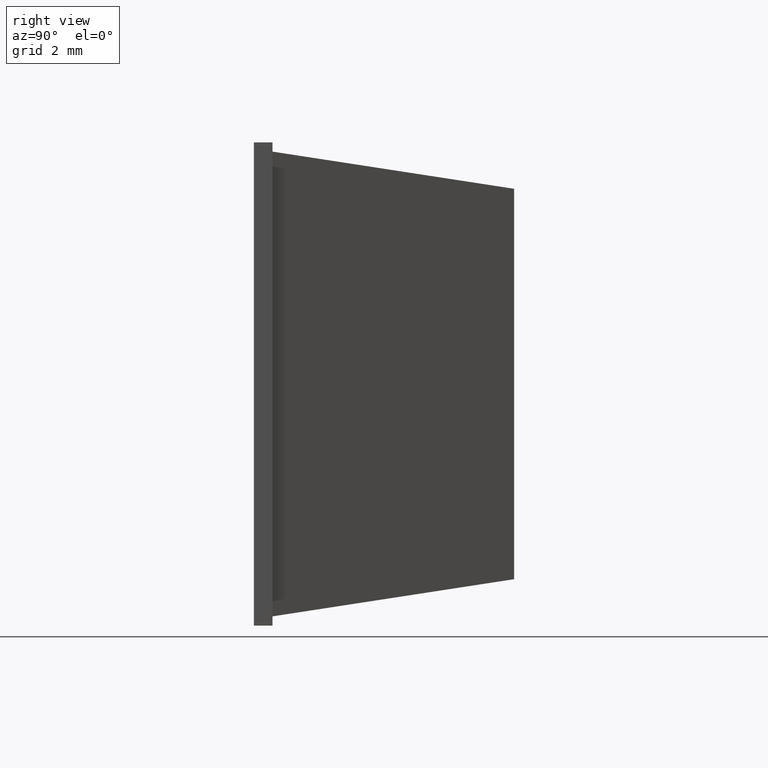
[diagram: clean part render]
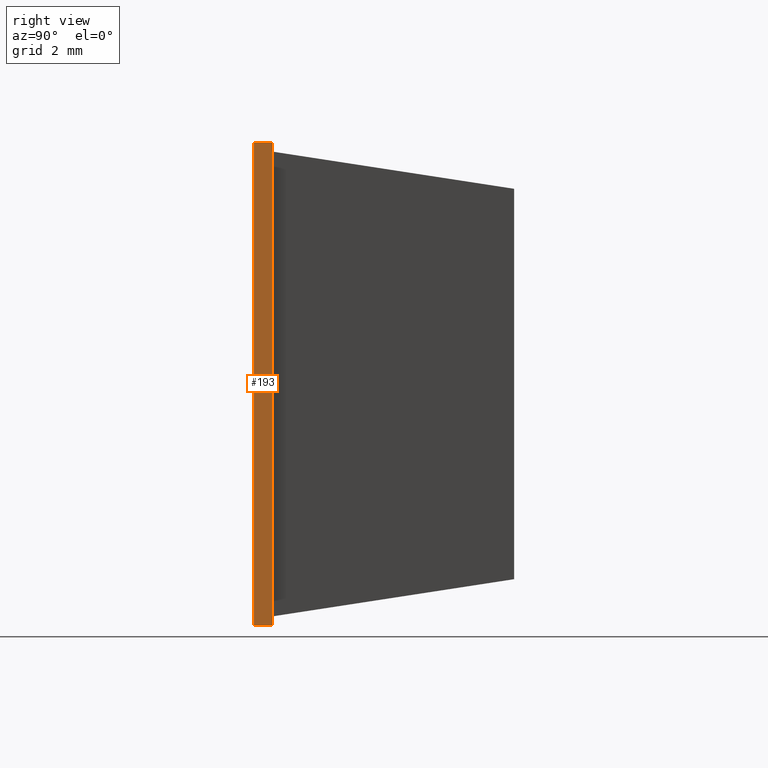
[diagram: same view with one face highlighted and labeled with its STEP entity id]
A machine part, right view. The second image highlights one B-rep face of the part: STEP entity #193.
In plain terms, the highlighted planar face has unit normal (1, 0, 0).
Its self-contained STEP definition (entity closure, byte-faithful):
#23=FACE_OUTER_BOUND('',#34,.T.);
#34=EDGE_LOOP('',(#155,#156,#157,#158));
#57=LINE('',#298,#81);
#58=LINE('',#301,#82);
#59=LINE('',#303,#83);
#60=LINE('',#304,#84);
#81=VECTOR('',#244,0.5);
#82=VECTOR('',#247,13.);
#83=VECTOR('',#248,13.);
#84=VECTOR('',#249,0.5);
#99=VERTEX_POINT('',#294);
#100=VERTEX_POINT('',#296);
#101=VERTEX_POINT('',#300);
#102=VERTEX_POINT('',#302);
#121=EDGE_CURVE('',#99,#100,#57,.T.);
#122=EDGE_CURVE('',#99,#101,#58,.T.);
#123=EDGE_CURVE('',#102,#100,#59,.T.);
#124=EDGE_CURVE('',#101,#102,#60,.T.);
#155=ORIENTED_EDGE('',*,*,#122,.F.);
#156=ORIENTED_EDGE('',*,*,#121,.T.);
#157=ORIENTED_EDGE('',*,*,#123,.F.);
#158=ORIENTED_EDGE('',*,*,#124,.F.);
#182=PLANE('',#206);
#193=ADVANCED_FACE('',(#23),#182,.T.);
#206=AXIS2_PLACEMENT_3D('',#299,#245,#246);
#244=DIRECTION('',(0.,1.,0.));
#245=DIRECTION('center_axis',(1.,0.,0.));
#246=DIRECTION('ref_axis',(0.,0.,-1.));
#247=DIRECTION('',(0.,0.,1.));
#248=DIRECTION('',(0.,0.,-1.));
#249=DIRECTION('',(0.,1.,0.));
#294=CARTESIAN_POINT('',(6.5,0.,-6.5));
#296=CARTESIAN_POINT('',(6.5,0.5,-6.5));
#298=CARTESIAN_POINT('',(6.5,0.,-6.5));
#299=CARTESIAN_POINT('Origin',(6.5,0.,6.5));
#300=CARTESIAN_POINT('',(6.5,0.,6.5));
#301=CARTESIAN_POINT('',(6.5,0.,-6.5));
#302=CARTESIAN_POINT('',(6.5,0.5,6.5));
#303=CARTESIAN_POINT('',(6.5,0.5,-6.5));
#304=CARTESIAN_POINT('',(6.5,0.,6.5));